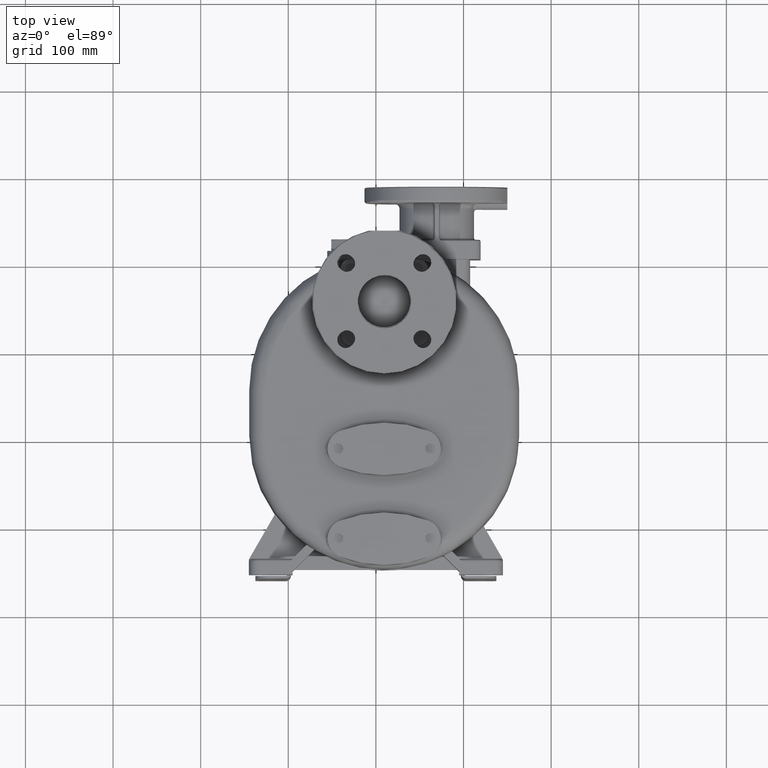
[diagram: clean part render]
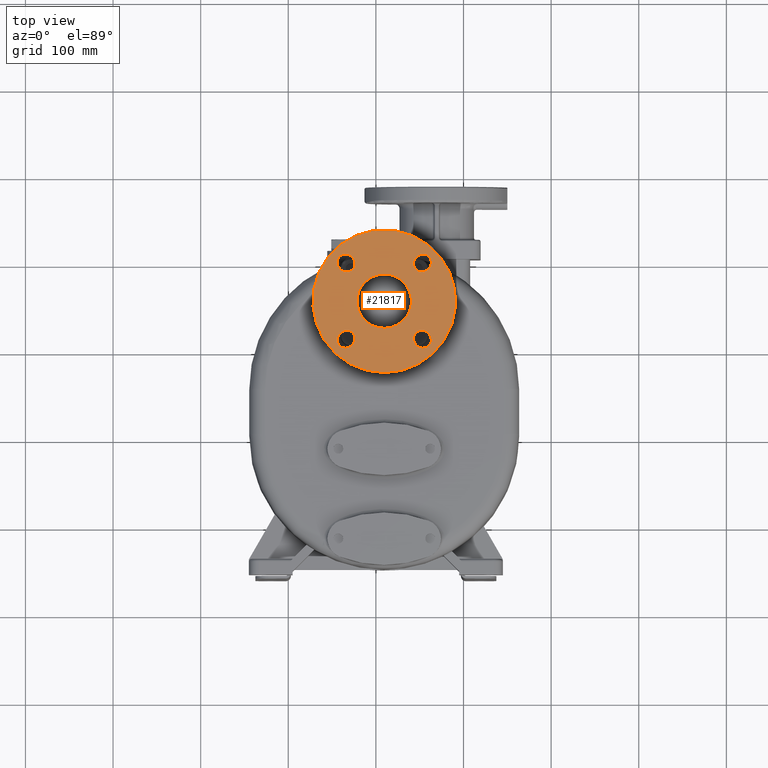
[diagram: same view with one face highlighted and labeled with its STEP entity id]
A machine part, top view. The second image highlights one B-rep face of the part: STEP entity #21817.
In plain terms, the highlighted planar face has unit normal (0, 0, 1).
Its self-contained STEP definition (entity closure, byte-faithful):
#2282=CARTESIAN_POINT('',(9.5E0,1.5E2,3.365E2));
#2283=DIRECTION('',(0.E0,0.E0,1.E0));
#2284=DIRECTION('',(-1.561708228387E-1,9.877300613497E-1,0.E0));
#2285=AXIS2_PLACEMENT_3D('',#2282,#2283,#2284);
#2310=DIRECTION('',(1.E0,0.E0,0.E0));
#2311=VECTOR('',#2310,2.545584412272E1);
#2312=CARTESIAN_POINT('',(-3.227922061358E0,2.305E2,3.365E2));
#2313=LINE('',#2312,#2311);
#2314=CARTESIAN_POINT('',(9.5E0,1.5E2,3.365E2));
#2315=DIRECTION('',(0.E0,0.E0,1.E0));
#2316=DIRECTION('',(0.E0,1.E0,0.E0));
#2317=AXIS2_PLACEMENT_3D('',#2314,#2315,#2316);
#2319=CARTESIAN_POINT('',(9.5E0,1.5E2,3.365E2));
#2320=DIRECTION('',(0.E0,0.E0,1.E0));
#2321=DIRECTION('',(0.E0,-1.E0,0.E0));
#2322=AXIS2_PLACEMENT_3D('',#2319,#2320,#2321);
#2324=DIRECTION('',(7.071067811865E-1,7.071067811865E-1,0.E0));
#2325=VECTOR('',#2324,2.E0);
#2326=CARTESIAN_POINT('',(5.899747468306E1,1.860624458405E2,3.365E2));
#2327=LINE('',#2326,#2325);
#2328=CARTESIAN_POINT('',(5.369417382416E1,1.941941738242E2,3.365E2));
#2329=DIRECTION('',(0.E0,0.E0,1.E0));
#2330=DIRECTION('',(7.071067811865E-1,-7.071067811866E-1,0.E0));
#2331=AXIS2_PLACEMENT_3D('',#2328,#2329,#2330);
#2333=DIRECTION('',(-7.071067811865E-1,-7.071067811866E-1,0.E0));
#2334=VECTOR('',#2333,2.E0);
#2335=CARTESIAN_POINT('',(4.697665940289E1,2.009116882454E2,3.365E2));
#2336=LINE('',#2335,#2334);
#2337=CARTESIAN_POINT('',(5.227996026179E1,1.927799602618E2,3.365E2));
#2338=DIRECTION('',(0.E0,0.E0,1.E0));
#2339=DIRECTION('',(-7.071067811866E-1,7.071067811865E-1,0.E0));
#2340=AXIS2_PLACEMENT_3D('',#2337,#2338,#2339);
#2342=DIRECTION('',(-7.071067811865E-1,7.071067811865E-1,0.E0));
#2343=VECTOR('',#2342,2.E0);
#2344=CARTESIAN_POINT('',(-2.656244584051E1,1.994974746831E2,3.365E2));
#2345=LINE('',#2344,#2343);
#2346=CARTESIAN_POINT('',(-3.469417382416E1,1.941941738242E2,3.365E2));
#2347=DIRECTION('',(0.E0,0.E0,1.E0));
#2348=DIRECTION('',(7.071067811866E-1,7.071067811865E-1,0.E0));
#2349=AXIS2_PLACEMENT_3D('',#2346,#2347,#2348);
#2351=DIRECTION('',(7.071067811865E-1,-7.071067811866E-1,0.E0));
#2352=VECTOR('',#2351,2.E0);
#2353=CARTESIAN_POINT('',(-4.141168824543E1,1.874766594029E2,3.365E2));
#2354=LINE('',#2353,#2352);
#2355=CARTESIAN_POINT('',(-3.327996026179E1,1.927799602618E2,3.365E2));
#2356=DIRECTION('',(0.E0,0.E0,1.E0));
#2357=DIRECTION('',(-7.071067811865E-1,-7.071067811866E-1,0.E0));
#2358=AXIS2_PLACEMENT_3D('',#2355,#2356,#2357);
#2360=DIRECTION('',(-7.071067811865E-1,-7.071067811866E-1,0.E0));
#2361=VECTOR('',#2360,2.E0);
#2362=CARTESIAN_POINT('',(-3.999747468306E1,1.139375541595E2,3.365E2));
#2363=LINE('',#2362,#2361);
#2364=CARTESIAN_POINT('',(-3.469417382416E1,1.058058261758E2,3.365E2));
#2365=DIRECTION('',(0.E0,0.E0,1.E0));
#2366=DIRECTION('',(-7.071067811865E-1,7.071067811865E-1,0.E0));
#2367=AXIS2_PLACEMENT_3D('',#2364,#2365,#2366);
#2369=DIRECTION('',(7.071067811866E-1,7.071067811865E-1,0.E0));
#2370=VECTOR('',#2369,2.E0);
#2371=CARTESIAN_POINT('',(-2.797665940289E1,9.908831175457E1,3.365E2));
#2372=LINE('',#2371,#2370);
#2373=CARTESIAN_POINT('',(-3.327996026179E1,1.072200397382E2,3.365E2));
#2374=DIRECTION('',(0.E0,0.E0,1.E0));
#2375=DIRECTION('',(7.071067811866E-1,-7.071067811865E-1,0.E0));
#2376=AXIS2_PLACEMENT_3D('',#2373,#2374,#2375);
#2378=DIRECTION('',(7.071067811865E-1,-7.071067811865E-1,0.E0));
#2379=VECTOR('',#2378,2.E0);
#2380=CARTESIAN_POINT('',(4.556244584051E1,1.005025253169E2,3.365E2));
#2381=LINE('',#2380,#2379);
#2382=CARTESIAN_POINT('',(5.369417382416E1,1.058058261758E2,3.365E2));
#2383=DIRECTION('',(0.E0,0.E0,1.E0));
#2384=DIRECTION('',(-7.071067811865E-1,-7.071067811865E-1,0.E0));
#2385=AXIS2_PLACEMENT_3D('',#2382,#2383,#2384);
#2387=DIRECTION('',(-7.071067811866E-1,7.071067811865E-1,0.E0));
#2388=VECTOR('',#2387,2.E0);
#2389=CARTESIAN_POINT('',(6.041168824543E1,1.125233405971E2,3.365E2));
#2390=LINE('',#2389,#2388);
#2391=CARTESIAN_POINT('',(5.227996026179E1,1.072200397382E2,3.365E2));
#2392=DIRECTION('',(0.E0,0.E0,1.E0));
#2393=DIRECTION('',(7.071067811865E-1,7.071067811866E-1,0.E0));
#2394=AXIS2_PLACEMENT_3D('',#2391,#2392,#2393);
#19725=CARTESIAN_POINT('',(5.899747468306E1,1.860624458405E2,3.365E2));
#19726=CARTESIAN_POINT('',(6.041168824543E1,1.874766594029E2,3.365E2));
#19727=VERTEX_POINT('',#19725);
#19728=VERTEX_POINT('',#19726);
#19729=CARTESIAN_POINT('',(4.697665940289E1,2.009116882454E2,3.365E2));
#19730=VERTEX_POINT('',#19729);
#19731=CARTESIAN_POINT('',(4.556244584051E1,1.994974746831E2,3.365E2));
#19732=VERTEX_POINT('',#19731);
#19741=CARTESIAN_POINT('',(-2.656244584051E1,1.994974746831E2,3.365E2));
#19742=CARTESIAN_POINT('',(-2.797665940289E1,2.009116882454E2,3.365E2));
#19743=VERTEX_POINT('',#19741);
#19744=VERTEX_POINT('',#19742);
#19745=CARTESIAN_POINT('',(-4.141168824543E1,1.874766594029E2,3.365E2));
#19746=VERTEX_POINT('',#19745);
#19747=CARTESIAN_POINT('',(-3.999747468306E1,1.860624458405E2,3.365E2));
#19748=VERTEX_POINT('',#19747);
#19757=CARTESIAN_POINT('',(-3.999747468306E1,1.139375541595E2,3.365E2));
#19758=CARTESIAN_POINT('',(-4.141168824543E1,1.125233405971E2,3.365E2));
#19759=VERTEX_POINT('',#19757);
#19760=VERTEX_POINT('',#19758);
#19761=CARTESIAN_POINT('',(-2.797665940289E1,9.908831175457E1,3.365E2));
#19762=VERTEX_POINT('',#19761);
#19763=CARTESIAN_POINT('',(-2.656244584051E1,1.005025253169E2,3.365E2));
#19764=VERTEX_POINT('',#19763);
#19773=CARTESIAN_POINT('',(4.556244584051E1,1.005025253169E2,3.365E2));
#19774=CARTESIAN_POINT('',(4.697665940289E1,9.908831175457E1,3.365E2));
#19775=VERTEX_POINT('',#19773);
#19776=VERTEX_POINT('',#19774);
#19777=CARTESIAN_POINT('',(6.041168824543E1,1.125233405971E2,3.365E2));
#19778=VERTEX_POINT('',#19777);
#19779=CARTESIAN_POINT('',(5.899747468306E1,1.139375541595E2,3.365E2));
#19780=VERTEX_POINT('',#19779);
#19789=CARTESIAN_POINT('',(-3.227922061358E0,2.305E2,3.365E2));
#19790=CARTESIAN_POINT('',(2.222792206136E1,2.305E2,3.365E2));
#19791=VERTEX_POINT('',#19789);
#19792=VERTEX_POINT('',#19790);
#19979=CARTESIAN_POINT('',(9.5E0,1.81E2,3.365E2));
#19980=CARTESIAN_POINT('',(9.5E0,1.19E2,3.365E2));
#19981=VERTEX_POINT('',#19979);
#19982=VERTEX_POINT('',#19980);
#21762=CARTESIAN_POINT('',(9.5E0,1.5E2,3.365E2));
#21763=DIRECTION('',(0.E0,0.E0,1.E0));
#21764=DIRECTION('',(0.E0,-1.E0,0.E0));
#21765=AXIS2_PLACEMENT_3D('',#21762,#21763,#21764);
#21766=PLANE('',#21765);
#21767=ORIENTED_EDGE('',*,*,#21737,.T.);
#21768=ORIENTED_EDGE('',*,*,#21753,.F.);
#21769=EDGE_LOOP('',(#21767,#21768));
#21770=FACE_OUTER_BOUND('',#21769,.F.);
#21772=ORIENTED_EDGE('',*,*,#21771,.T.);
#21774=ORIENTED_EDGE('',*,*,#21773,.T.);
#21775=EDGE_LOOP('',(#21772,#21774));
#21776=FACE_BOUND('',#21775,.F.);
#21778=ORIENTED_EDGE('',*,*,#21777,.T.);
#21780=ORIENTED_EDGE('',*,*,#21779,.T.);
#21782=ORIENTED_EDGE('',*,*,#21781,.T.);
#21784=ORIENTED_EDGE('',*,*,#21783,.T.);
#21785=EDGE_LOOP('',(#21778,#21780,#21782,#21784));
#21786=FACE_BOUND('',#21785,.F.);
#21788=ORIENTED_EDGE('',*,*,#21787,.T.);
#21790=ORIENTED_EDGE('',*,*,#21789,.T.);
#21792=ORIENTED_EDGE('',*,*,#21791,.T.);
#21794=ORIENTED_EDGE('',*,*,#21793,.T.);
#21795=EDGE_LOOP('',(#21788,#21790,#21792,#21794));
#21796=FACE_BOUND('',#21795,.F.);
#21798=ORIENTED_EDGE('',*,*,#21797,.T.);
#21800=ORIENTED_EDGE('',*,*,#21799,.T.);
#21802=ORIENTED_EDGE('',*,*,#21801,.T.);
#21804=ORIENTED_EDGE('',*,*,#21803,.T.);
#21805=EDGE_LOOP('',(#21798,#21800,#21802,#21804));
#21806=FACE_BOUND('',#21805,.F.);
#21808=ORIENTED_EDGE('',*,*,#21807,.T.);
#21810=ORIENTED_EDGE('',*,*,#21809,.T.);
#21812=ORIENTED_EDGE('',*,*,#21811,.T.);
#21814=ORIENTED_EDGE('',*,*,#21813,.T.);
#21815=EDGE_LOOP('',(#21808,#21810,#21812,#21814));
#21816=FACE_BOUND('',#21815,.F.);
#21817=ADVANCED_FACE('',(#21770,#21776,#21786,#21796,#21806,#21816),#21766,.T.);
#2286=CIRCLE('',#2285,8.15E1);
#2318=CIRCLE('',#2317,3.1E1);
#2323=CIRCLE('',#2322,3.1E1);
#2332=CIRCLE('',#2331,9.5E0);
#2341=CIRCLE('',#2340,9.5E0);
#2350=CIRCLE('',#2349,9.5E0);
#2359=CIRCLE('',#2358,9.5E0);
#2368=CIRCLE('',#2367,9.5E0);
#2377=CIRCLE('',#2376,9.5E0);
#2386=CIRCLE('',#2385,9.5E0);
#2395=CIRCLE('',#2394,9.5E0);
#21737=EDGE_CURVE('',#19791,#19792,#2313,.T.);
#21753=EDGE_CURVE('',#19791,#19792,#2286,.T.);
#21771=EDGE_CURVE('',#19981,#19982,#2318,.T.);
#21773=EDGE_CURVE('',#19982,#19981,#2323,.T.);
#21777=EDGE_CURVE('',#19727,#19728,#2327,.T.);
#21779=EDGE_CURVE('',#19728,#19730,#2332,.T.);
#21781=EDGE_CURVE('',#19730,#19732,#2336,.T.);
#21783=EDGE_CURVE('',#19732,#19727,#2341,.T.);
#21787=EDGE_CURVE('',#19743,#19744,#2345,.T.);
#21789=EDGE_CURVE('',#19744,#19746,#2350,.T.);
#21791=EDGE_CURVE('',#19746,#19748,#2354,.T.);
#21793=EDGE_CURVE('',#19748,#19743,#2359,.T.);
#21797=EDGE_CURVE('',#19759,#19760,#2363,.T.);
#21799=EDGE_CURVE('',#19760,#19762,#2368,.T.);
#21801=EDGE_CURVE('',#19762,#19764,#2372,.T.);
#21803=EDGE_CURVE('',#19764,#19759,#2377,.T.);
#21807=EDGE_CURVE('',#19775,#19776,#2381,.T.);
#21809=EDGE_CURVE('',#19776,#19778,#2386,.T.);
#21811=EDGE_CURVE('',#19778,#19780,#2390,.T.);
#21813=EDGE_CURVE('',#19780,#19775,#2395,.T.);